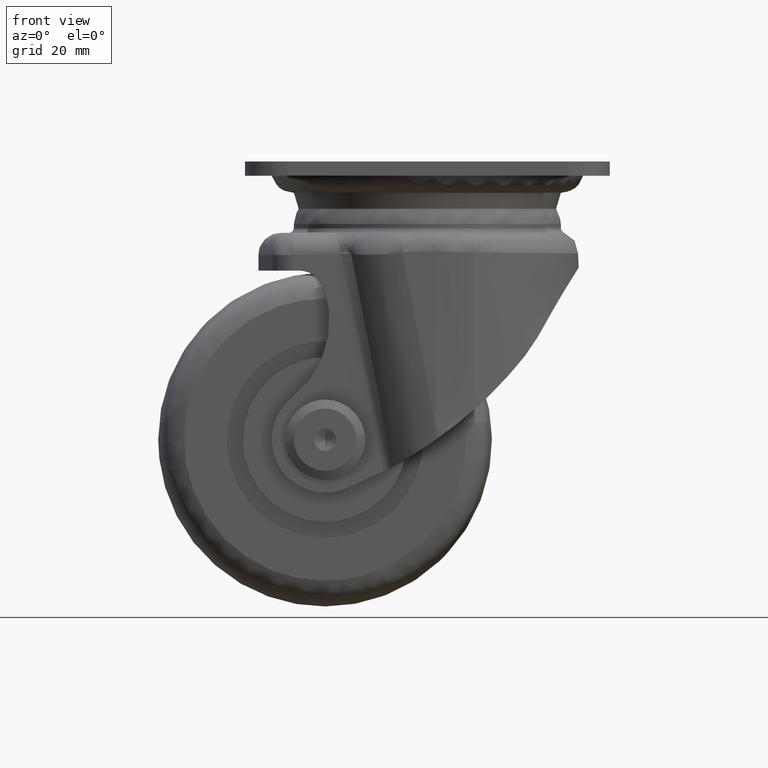
[diagram: clean part render]
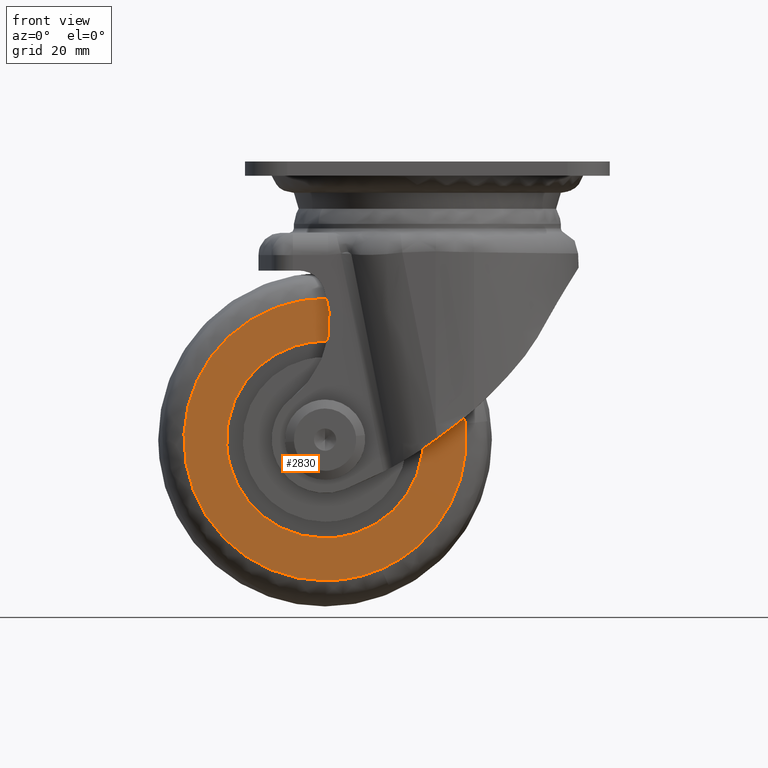
[diagram: same view with one face highlighted and labeled with its STEP entity id]
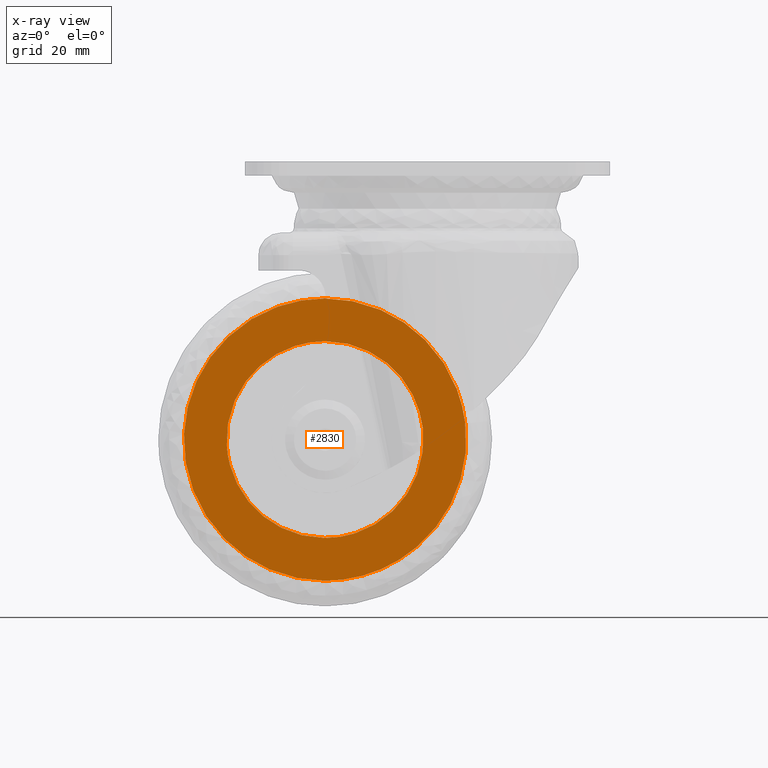
[diagram: x-ray of the same camera — body ghosted, the highlighted face saturated]
A machine part, front view. The second image highlights one B-rep face of the part: STEP entity #2830.
The next image is the same camera in x-ray: the body ghosted, the highlighted face saturated — about 0% of this face is hidden behind the body in this view.
In plain terms, the highlighted face is a freeform B-spline surface patch.
Its self-contained STEP definition (entity closure, byte-faithful):
#1545=CARTESIAN_POINT('',(-22.078742902913518,-20.0,-63.850391079295100));
#1546=VERTEX_POINT('',#1545);
#1552=CARTESIAN_POINT('',(0.0,-20.0,-84.620001000000002));
#1553=VERTEX_POINT('',#1552);
#1554=CARTESIAN_POINT('',(0.0,-20.0,-84.620001000000002));
#1555=CARTESIAN_POINT('',(-20.808421667656308,-19.999999999999996,-84.620000999999988));
#1556=CARTESIAN_POINT('',(-22.078742902913685,-19.999999999999993,-63.850391079295122));
#1564=(BOUNDED_CURVE()B_SPLINE_CURVE(2,(#1554,#1555,#1556),.UNSPECIFIED.,.F.,.U.)B_SPLINE_CURVE_WITH_KNOTS((3,3),(0.500000000000000,0.739332983157147),.UNSPECIFIED.)CURVE()GEOMETRIC_REPRESENTATION_ITEM()RATIONAL_B_SPLINE_CURVE((1.0,0.719603968779510,0.976072086498415))REPRESENTATION_ITEM(''));
#1565=EDGE_CURVE('',#1553,#1546,#1564,.T.);
#1567=CARTESIAN_POINT('',(21.965374979091600,-20.0,-59.889110062232888));
#1568=VERTEX_POINT('',#1567);
#1569=CARTESIAN_POINT('',(21.965374979091596,-20.000000000000004,-59.889110062232888));
#1570=CARTESIAN_POINT('',(22.120001000000006,-20.0,-61.189976284613934));
#1571=CARTESIAN_POINT('',(22.120000999999998,-20.0,-62.500000000000000));
#1572=CARTESIAN_POINT('',(22.120000999999998,-20.0,-84.620001000000002));
#1573=CARTESIAN_POINT('',(0.0,-20.0,-84.620001000000002));
#1581=(BOUNDED_CURVE()B_SPLINE_CURVE(2,(#1569,#1570,#1571,#1572,#1573),.UNSPECIFIED.,.F.,.U.)B_SPLINE_CURVE_WITH_KNOTS((3,2,3),(0.229562684724788,0.250000000000000,0.500000000000000),.UNSPECIFIED.)CURVE()GEOMETRIC_REPRESENTATION_ITEM()RATIONAL_B_SPLINE_CURVE((0.956027168166869,0.976056195780551,1.0,0.707106781186547,1.0))REPRESENTATION_ITEM(''));
#1582=EDGE_CURVE('',#1568,#1553,#1581,.T.);
#1626=CARTESIAN_POINT('',(0.0,-20.0,-40.379998999999998));
#1627=VERTEX_POINT('',#1626);
#1628=CARTESIAN_POINT('',(0.0,-20.0,-40.379998999999998));
#1629=CARTESIAN_POINT('',(19.646446127876093,-20.000000000000004,-40.379998999999984));
#1630=CARTESIAN_POINT('',(21.965374979091596,-20.000000000000004,-59.889110062232888));
#1638=(BOUNDED_CURVE()B_SPLINE_CURVE(2,(#1628,#1629,#1630),.UNSPECIFIED.,.F.,.U.)B_SPLINE_CURVE_WITH_KNOTS((3,3),(0.0,0.229562684724788),.UNSPECIFIED.)CURVE()GEOMETRIC_REPRESENTATION_ITEM()RATIONAL_B_SPLINE_CURVE((1.0,0.731050585405996,0.956027168166869))REPRESENTATION_ITEM(''));
#1639=EDGE_CURVE('',#1627,#1568,#1638,.T.);
#1641=CARTESIAN_POINT('',(-22.078742902913685,-19.999999999999993,-63.850391079295122));
#1642=CARTESIAN_POINT('',(-22.120000999999998,-20.0,-63.175825812833345));
#1643=CARTESIAN_POINT('',(-22.120000999999998,-20.0,-62.500000000000000));
#1644=CARTESIAN_POINT('',(-22.120000999999998,-20.0,-40.379998999999991));
#1645=CARTESIAN_POINT('',(0.0,-20.0,-40.379998999999998));
#1653=(BOUNDED_CURVE()B_SPLINE_CURVE(2,(#1641,#1642,#1643,#1644,#1645),.UNSPECIFIED.,.F.,.U.)B_SPLINE_CURVE_WITH_KNOTS((3,2,3),(0.739332983157147,0.750000000000000,1.0),.UNSPECIFIED.)CURVE()GEOMETRIC_REPRESENTATION_ITEM()RATIONAL_B_SPLINE_CURVE((0.976072086498415,0.987502812407038,1.0,0.707106781186547,1.0))REPRESENTATION_ITEM(''));
#1654=EDGE_CURVE('',#1546,#1627,#1653,.T.);
#2276=CARTESIAN_POINT('',(12.682795492218080,-20.0,-91.576363275489186));
#2277=VERTEX_POINT('',#2276);
#2278=CARTESIAN_POINT('',(0.0,-20.0,-94.222046000000091));
#2279=VERTEX_POINT('',#2278);
#2280=CARTESIAN_POINT('',(12.682795492218075,-20.000000000000004,-91.576363275489186));
#2281=CARTESIAN_POINT('',(6.617347834817242,-19.999999999999996,-94.222046000000091));
#2282=CARTESIAN_POINT('',(0.0,-20.0,-94.222046000000091));
#2290=(BOUNDED_CURVE()B_SPLINE_CURVE(2,(#2280,#2281,#2282),.UNSPECIFIED.,.F.,.U.)B_SPLINE_CURVE_WITH_KNOTS((3,3),(0.432113194863119,0.500000000000000),.UNSPECIFIED.)CURVE()GEOMETRIC_REPRESENTATION_ITEM()RATIONAL_B_SPLINE_CURVE((0.884125978678997,0.920465660513989,1.0))REPRESENTATION_ITEM(''));
#2291=EDGE_CURVE('',#2277,#2279,#2290,.T.);
#2293=CARTESIAN_POINT('',(0.0,-20.0,-30.777953999999909));
#2294=VERTEX_POINT('',#2293);
#2295=CARTESIAN_POINT('',(0.0,-20.0,-94.222046000000091));
#2296=CARTESIAN_POINT('',(-31.722046000000088,-19.999999999999996,-94.222046000000091));
#2297=CARTESIAN_POINT('',(-31.722046000000098,-20.0,-62.500000000000000));
#2298=CARTESIAN_POINT('',(-31.722046000000088,-19.999999999999996,-30.777953999999905));
#2299=CARTESIAN_POINT('',(0.0,-20.0,-30.777953999999909));
#2307=(BOUNDED_CURVE()B_SPLINE_CURVE(2,(#2295,#2296,#2297,#2298,#2299),.UNSPECIFIED.,.F.,.U.)B_SPLINE_CURVE_WITH_KNOTS((3,2,3),(0.500000000000000,0.750000000000000,1.0),.UNSPECIFIED.)CURVE()GEOMETRIC_REPRESENTATION_ITEM()RATIONAL_B_SPLINE_CURVE((1.0,0.707106781186548,1.0,0.707106781186548,1.0))REPRESENTATION_ITEM(''));
#2308=EDGE_CURVE('',#2279,#2294,#2307,.T.);
#2310=CARTESIAN_POINT('',(31.519383703066850,-20.0,-58.919964566741477));
#2311=VERTEX_POINT('',#2310);
#2312=CARTESIAN_POINT('',(0.0,-20.0,-30.777953999999909));
#2313=CARTESIAN_POINT('',(28.322957145328225,-19.999999999999996,-30.777953999999916));
#2314=CARTESIAN_POINT('',(31.519383703066850,-20.0,-58.919964566741491));
#2322=(BOUNDED_CURVE()B_SPLINE_CURVE(2,(#2312,#2313,#2314),.UNSPECIFIED.,.F.,.U.)B_SPLINE_CURVE_WITH_KNOTS((3,3),(0.0,0.230444236552592),.UNSPECIFIED.)CURVE()GEOMETRIC_REPRESENTATION_ITEM()RATIONAL_B_SPLINE_CURVE((1.0,0.730017783196411,0.957762333065458))REPRESENTATION_ITEM(''));
#2323=EDGE_CURVE('',#2294,#2311,#2322,.T.);
#2435=CARTESIAN_POINT('',(31.519383703066854,-19.999999999999993,-58.919964566741477));
#2436=CARTESIAN_POINT('',(31.722046000000095,-20.000000000000004,-60.704246026184478));
#2437=CARTESIAN_POINT('',(31.722046000000098,-20.0,-62.500000000000000));
#2438=CARTESIAN_POINT('',(31.722046000000095,-20.0,-83.271647915018264));
#2439=CARTESIAN_POINT('',(12.682795492218077,-19.999999999999996,-91.576363275489186));
#2447=(BOUNDED_CURVE()B_SPLINE_CURVE(2,(#2435,#2436,#2437,#2438,#2439),.UNSPECIFIED.,.F.,.U.)B_SPLINE_CURVE_WITH_KNOTS((3,2,3),(0.230444236552592,0.250000000000000,0.432113194863119),.UNSPECIFIED.)CURVE()GEOMETRIC_REPRESENTATION_ITEM()RATIONAL_B_SPLINE_CURVE((0.957762333065457,0.977088997990137,1.0,0.786641120672559,0.884125978678997))REPRESENTATION_ITEM(''));
#2448=EDGE_CURVE('',#2311,#2277,#2447,.T.);
#2813=CARTESIAN_POINT('',(-34.890919455545863,-20.0,-27.608921727566859));
#2814=CARTESIAN_POINT('',(-34.890919455545863,-20.0,-97.391079974136289));
#2815=CARTESIAN_POINT('',(34.887741639778071,-20.0,-27.608921727566859));
#2816=CARTESIAN_POINT('',(34.887741639778071,-20.0,-97.391079974136289));
#2817=B_SPLINE_SURFACE_WITH_KNOTS('',1,1,((#2813,#2815),(#2814,#2816)),.UNSPECIFIED.,.F.,.F.,.U.,(2,2),(2,2),(0.0,69.782158246569438),(0.0,69.778661095323940),.UNSPECIFIED.);
#2818=ORIENTED_EDGE('',*,*,#2308,.F.);
#2819=ORIENTED_EDGE('',*,*,#2291,.F.);
#2820=ORIENTED_EDGE('',*,*,#2448,.F.);
#2821=ORIENTED_EDGE('',*,*,#2323,.F.);
#2822=EDGE_LOOP('',(#2818,#2819,#2820,#2821));
#2823=FACE_OUTER_BOUND('',#2822,.T.);
#2824=ORIENTED_EDGE('',*,*,#1565,.T.);
#2825=ORIENTED_EDGE('',*,*,#1654,.T.);
#2826=ORIENTED_EDGE('',*,*,#1639,.T.);
#2827=ORIENTED_EDGE('',*,*,#1582,.T.);
#2828=EDGE_LOOP('',(#2824,#2825,#2826,#2827));
#2829=FACE_BOUND('',#2828,.T.);
#2830=ADVANCED_FACE('',(#2823,#2829),#2817,.T.);